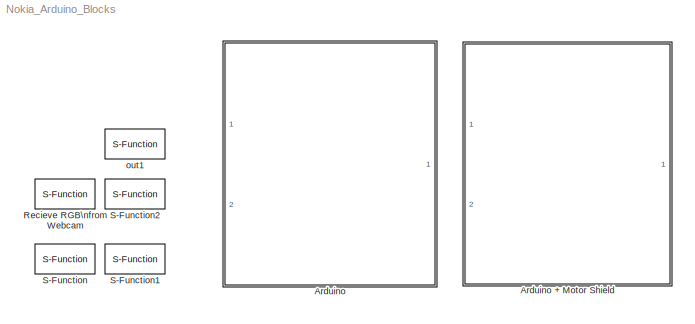
MODEL Nokia_Arduino_Blocks
KIND library
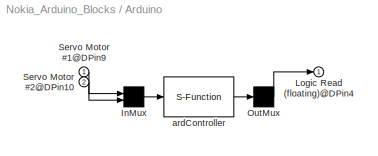
BLOCK [SubSystem] Arduino
  FunctionWithSeparateData = off
  MaskCallbackString = ||ardInterface('clearAll');\nset_param(gcb, 'LinkStatus', 'none')\nmaskStr = get_param(gcb,'MaskEnables');\nmaskVals = get_param(gcb,'MaskValues');\nif strcmp(get_param(gcb,'PinConfig2'),'Encoder (with pin 4)')\n    maskStr{5}='off';\n    maskVals{5}='Unused';\nelse\n    maskStr{5}='on';\nend\n\nset_param(gcb,'MaskEnables',maskStr);\nset_param(gcb,'MaskValues',maskVals);\n|ardInterface('clearAll')...<+365ch>
  MaskEnableString = off,off,on,on,on,on,on,on,on,on,on,on,on,on,on,on,on,on,on,on
  MaskHideContents = off
  MaskIconFrame = on
  MaskIconOpaque = on
  MaskIconRotate = none
  MaskIconUnits = autoscale
  MaskInitialization = set_param(gcb, 'LinkStatus', 'none')\nardInterface('all');
  MaskPortRotate = default
  MaskPromptString = Digital Pin 0 : |Digital Pin 1 : |Digital Pin 2 : |Digital Pin 3 : |Digital Pin 4 : |Digital Pin 5 : |Digital Pin 6 : |Digital Pin 7 : |Digital Pin 8 : |Digital Pin 9 : |Digital Pin 10:|Digital Pin 11:|Digital Pin 12:|Digital Pin 13:|Analog Input 0:|Analog Input 1:|Analog Input 2:|Analog Input 3:|Analog Input 4:|Analog Input 5:
  MaskSelfModifiable = on
  MaskStyleString = popup(Unused|Rx|Logic Write|Logic Read (floating)|Logic Read (pulled high)),popup(Unused|Tx|Logic Write|Logic Read (floating)|Logic Read (pulled high)),popup(Unused|Encoder (with pin 4)|Logic Write|Logic Read (floating)|Logic Read (pulled high)),popup(Unused|Encoder (with pin 5)|PWM Write|Logic Write|Logic Read (floating)|Logic Read (pulled high)),popup(Unused|Logic Write|Logic Read (floating)|Log...<+925ch>
  MaskTabNameString = Digital I/O,Digital I/O,Digital I/O,Digital I/O,Digital I/O,Digital I/O,Digital I/O,Digital I/O,Digital I/O,Digital I/O,Digital I/O,Digital I/O,Digital I/O,Digital I/O,Analog Output,Analog Output,Analog Output,Analog Output,Analog Output,Analog Output
  MaskToolTipString = on,on,on,on,on,on,on,on,on,on,on,on,on,on,on,on,on,on,on,on
  MaskTunableValueString = off,off,off,off,off,off,off,off,off,off,off,off,off,off,off,off,off,off,off,off
  MaskValueString = Rx|Tx|Unused|Unused|Logic Read (floating)|Unused|Unused|Unused|Unused|Servo Motor #1|Servo Motor #2|Unused|Unused|Unused|Unused|Unused|Unused|Unused|Unused|Unused
  MaskVariables = PinConfig0=&1;PinConfig1=&2;PinConfig2=&3;PinConfig3=&4;PinConfig4=&5;PinConfig5=&6;PinConfig6=&7;PinConfig7=&8;PinConfig8=&9;PinConfig9=&10;PinConfig10=&11;PinConfig11=&12;PinConfig12=&13;PinConfig13=&14;ApinConfig0=&15;ApinConfig1=&16;ApinConfig2=&17;ApinConfig3=&18;ApinConfig4=&19;ApinConfig5=&20;
  MaskVisibilityString = on,on,on,on,on,on,on,on,on,on,on,on,on,on,on,on,on,on,on,on
  MinAlgLoopOccurrences = off
  Opaque = off
  Ports = [2, 1]
  PropExecContextOutsideSubsystem = off
  RTWSystemCode = Auto
  RequestExecContextInheritance = off
  SID = 52
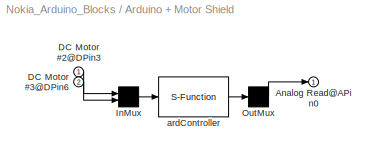
BLOCK [SubSystem] Arduino + Motor Shield
  FunctionWithSeparateData = off
  MaskCallbackString = ardInterface('clearAll');|ardInterface('clearAll');|ardInterface('clearAll');\nset_param(gcb, 'LinkStatus', 'none')\nmaskStr = get_param(gcb,'MaskEnables');\nmaskVals = get_param(gcb,'MaskValues');\nif strcmp(get_param(gcb,'PinConfig2'),'Encoder (with pin 9)')\n    maskStr{10}='off';\n    maskVals{10}='Unused';\nelse\n    maskStr{10}='on';\nend\n\nset_param(gcb,'MaskEnables',maskStr);\nset_param(g...<+4395ch>
  MaskEnableString = off,off,on,on,off,on,on,off,off,on,on,on,off,on,on,on,on,on,on,on
  MaskHideContents = off
  MaskIconFrame = on
  MaskIconOpaque = on
  MaskIconRotate = none
  MaskIconUnits = autoscale
  MaskInitialization = set_param(gcb, 'LinkStatus', 'none')\nardInterface('all');
  MaskPortRotate = default
  MaskPromptString = Digital Pin 0 : |Digital Pin 1 : |Digital Pin 2 : |Digital Pin 3 : |Digital Pin 4 : |Digital Pin 5 : |Digital Pin 6 : |Digital Pin 7 : |Digital Pin 8 : |Digital Pin 9 : |Digital Pin 10:|Digital Pin 11:|Digital Pin 12:|Digital Pin 13:|Analog Input 0:|Analog Input 1:|Analog Input 2:|Analog Input 3:|Analog Input 4:|Analog Input 5:
  MaskSelfModifiable = on
  MaskStyleString = popup(Unused|Rx|Logic Write|Logic Read (floating)|Logic Read (pulled high)),popup(Unused|Tx|Logic Write|Logic Read (floating)|Logic Read (pulled high)),popup(Unused|Encoder (with pin 9)|Logic Write|Logic Read (floating)|Logic Read (pulled high)),popup(Unused|Encoder (with pin 10)|PWM Write|Logic Write|Logic Read (floating)|Logic Read (pulled high)|DC Motor #2|Stepper Motor #1),popup(Unused|Logic W...<+1012ch>
  MaskTabNameString = Digital I/O,Digital I/O,Digital I/O,Digital I/O,Digital I/O,Digital I/O,Digital I/O,Digital I/O,Digital I/O,Digital I/O,Digital I/O,Digital I/O,Digital I/O,Digital I/O,Analog Output,Analog Output,Analog Output,Analog Output,Analog Output,Analog Output
  MaskToolTipString = on,on,on,on,on,on,on,on,on,on,on,on,on,on,on,on,on,on,on,on
  MaskTunableValueString = off,off,off,off,off,off,off,off,off,off,off,off,off,off,off,off,off,off,off,off
  MaskValueString = Rx|Tx|Unused|DC Motor #2|Unused|Unused|DC Motor #3|Unused|Unused|Unused|Unused|Unused|Unused|Unused|Analog Read|Unused|Unused|Unused|Unused|Unused
  MaskVariables = PinConfig0=&1;PinConfig1=&2;PinConfig2=&3;PinConfig3=&4;PinConfig4=&5;PinConfig5=&6;PinConfig6=&7;PinConfig7=&8;PinConfig8=&9;PinConfig9=&10;PinConfig10=&11;PinConfig11=&12;PinConfig12=&13;PinConfig13=&14;ApinConfig0=&15;ApinConfig1=&16;ApinConfig2=&17;ApinConfig3=&18;ApinConfig4=&19;ApinConfig5=&20;
  MaskVisibilityString = on,on,on,on,on,on,on,on,on,on,on,on,on,on,on,on,on,on,on,on
  MinAlgLoopOccurrences = off
  Opaque = off
  Ports = [2, 1]
  PropExecContextOutsideSubsystem = off
  RTWSystemCode = Auto
  RequestExecContextInheritance = off
  SID = 53
BLOCK [Outport] Arduino + Motor Shield/Analog Read@APin0
  IconDisplay = Port number
  SID = 21
BLOCK [Inport] Arduino + Motor Shield/DC Motor #2@DPin3
  IconDisplay = Port number
  SID = 1168
BLOCK [Inport] Arduino + Motor Shield/DC Motor #3@DPin6
  IconDisplay = Port number
  Port = 2
  SID = 1172
BLOCK [Mux] Arduino + Motor Shield/InMux
  Inputs = 2
  Ports = [2, 1]
  SID = 1177
BLOCK [Demux] Arduino + Motor Shield/OutMux
  Outputs = 1
  Ports = [1, 1]
  SID = 1178
BLOCK [S-Function] Arduino + Motor Shield/ardController
  EnableBusSupport = off
  FunctionName = ardController
  Parameters = '[:M2M:M3M:A0A]' '2' '1'
  Ports = [1, 1]
  SID = 1176
BLOCK [Mux] Arduino/InMux
  Inputs = 2
  Ports = [2, 1]
  SID = 6423
BLOCK [Outport] Arduino/Logic Read (floating)@DPin4
  IconDisplay = Port number
  SID = 6418
BLOCK [Demux] Arduino/OutMux
  Outputs = 1
  Ports = [1, 1]
  SID = 6424
BLOCK [Inport] Arduino/Servo Motor #1@DPin9
  IconDisplay = Port number
  SID = 38
BLOCK [Inport] Arduino/Servo Motor #2@DPin10
  IconDisplay = Port number
  Port = 2
  SID = 38
BLOCK [S-Function] Arduino/ardController
  EnableBusSupport = off
  FunctionName = ardController
  Parameters = '[:D4F:M1S:M2S]' '2' '1'
  Ports = [1, 1]
  SID = 6422
BLOCK [S-Function] Recieve RGB\nfrom Webcam
  EnableBusSupport = off
  FunctionName = picOut
  Parameters = 153 104 42 82
  Ports = [0, 3]
  SID = 26
BLOCK [S-Function] S-Function
  EnableBusSupport = off
  FunctionName = toIp
  Parameters = '153.104.47.61','6667'
  Ports = [1]
  SID = 29
BLOCK [S-Function] S-Function1
  EnableBusSupport = off
  FunctionName = fromIp
  Parameters = '6667' 0
  Ports = [0, 1]
  SID = 30
BLOCK [S-Function] S-Function2
  EnableBusSupport = off
  FunctionName = localPicOut
  Parameters = 320 240 320 240
  Ports = [0, 3]
  SID = 31
BLOCK [S-Function] out1
  EnableBusSupport = off
  FunctionName = printOut
  Ports = [1]
  SID = 27
LINE Arduino + Motor Shield/DC Motor #2@DPin3:1 -> Arduino + Motor Shield/InMux:1
LINE Arduino + Motor Shield/DC Motor #3@DPin6:1 -> Arduino + Motor Shield/InMux:2
LINE Arduino + Motor Shield/InMux:1 -> Arduino + Motor Shield/ardController:1
LINE Arduino + Motor Shield/OutMux:1 -> Arduino + Motor Shield/Analog Read@APin0:1
LINE Arduino + Motor Shield/ardController:1 -> Arduino + Motor Shield/OutMux:1
LINE Arduino/InMux:1 -> Arduino/ardController:1
LINE Arduino/OutMux:1 -> Arduino/Logic Read (floating)@DPin4:1
LINE Arduino/Servo Motor #1@DPin9:1 -> Arduino/InMux:1
LINE Arduino/Servo Motor #2@DPin10:1 -> Arduino/InMux:2
LINE Arduino/ardController:1 -> Arduino/OutMux:1
